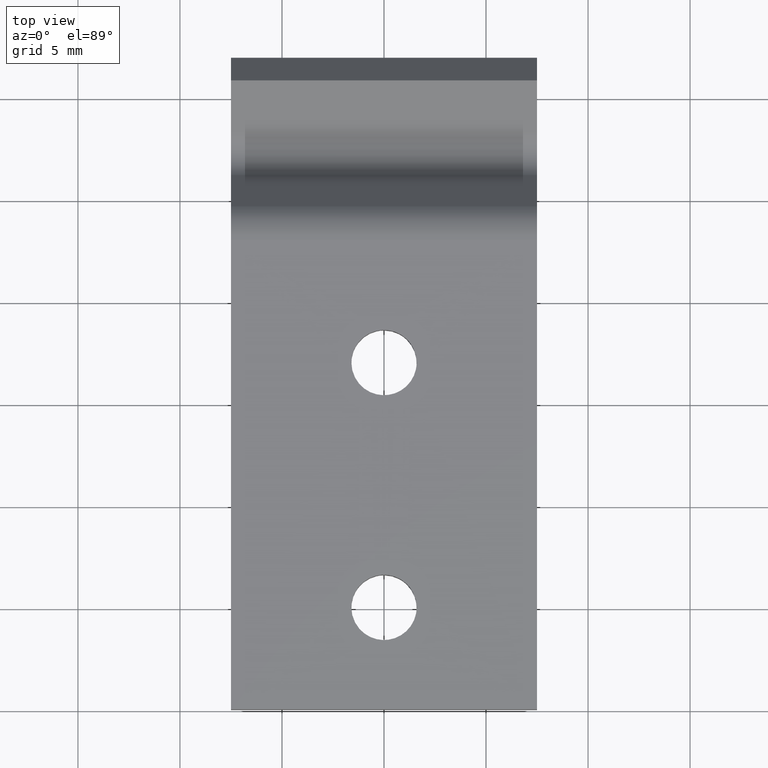
[diagram: clean part render]
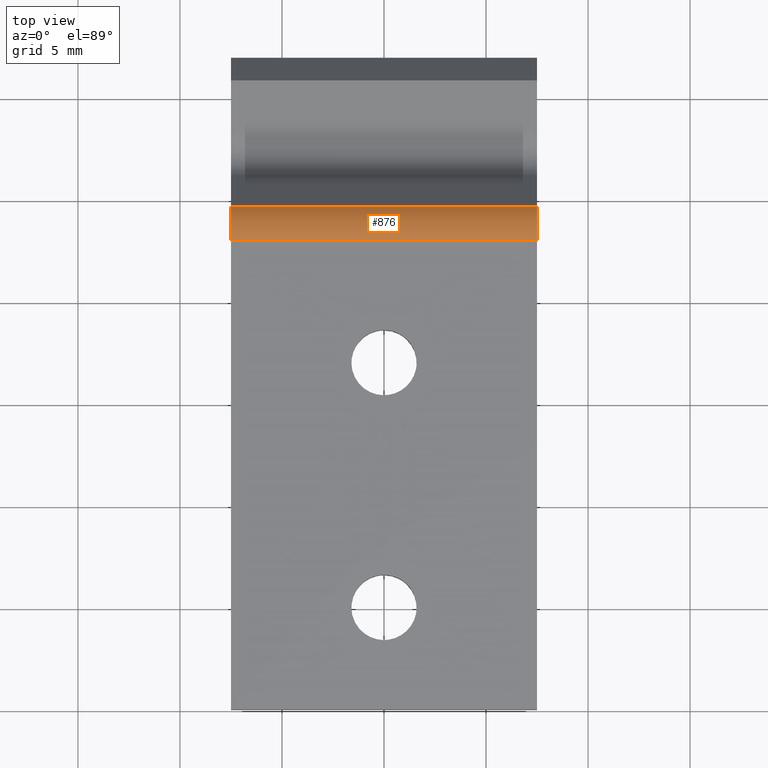
[diagram: same view with one face highlighted and labeled with its STEP entity id]
A machine part, top view. The second image highlights one B-rep face of the part: STEP entity #876.
In plain terms, the highlighted face is a freeform B-spline surface patch.
Its self-contained STEP definition (entity closure, byte-faithful):
#429=CARTESIAN_POINT('',(7.500000000000000,24.677000032489701,-0.910000049971348));
#430=VERTEX_POINT('',#429);
#431=CARTESIAN_POINT('',(7.500000000000000,23.0,1.408297E-015));
#432=VERTEX_POINT('',#431);
#433=CARTESIAN_POINT('',(7.500000000000000,24.677000032489669,-0.910000049971368));
#434=CARTESIAN_POINT('',(7.500000000000000,24.085376340791562,-0.000042243061587));
#435=CARTESIAN_POINT('',(7.500000000000000,23.0,-1.908196E-014));
#443=(BOUNDED_CURVE()B_SPLINE_CURVE(2,(#433,#434,#435),.UNSPECIFIED.,.F.,.U.)CURVE()GEOMETRIC_REPRESENTATION_ITEM()QUASI_UNIFORM_CURVE()RATIONAL_B_SPLINE_CURVE((1.0,0.878953597617270,1.0))REPRESENTATION_ITEM(''));
#444=EDGE_CURVE('',#430,#432,#443,.T.);
#542=CARTESIAN_POINT('',(-7.500000000000000,24.677000032489701,-0.910000049971348));
#543=VERTEX_POINT('',#542);
#544=CARTESIAN_POINT('',(-7.500000000000000,23.0,1.408297E-015));
#545=VERTEX_POINT('',#544);
#546=CARTESIAN_POINT('',(-7.500000000000000,24.677000032489669,-0.910000049971368));
#547=CARTESIAN_POINT('',(-7.500000000000000,24.085376340791562,-0.000042243061587));
#548=CARTESIAN_POINT('',(-7.500000000000000,23.0,-1.908196E-014));
#556=(BOUNDED_CURVE()B_SPLINE_CURVE(2,(#546,#547,#548),.UNSPECIFIED.,.F.,.U.)CURVE()GEOMETRIC_REPRESENTATION_ITEM()QUASI_UNIFORM_CURVE()RATIONAL_B_SPLINE_CURVE((1.0,0.878953597617270,1.0))REPRESENTATION_ITEM(''));
#557=EDGE_CURVE('',#543,#545,#556,.T.);
#662=CARTESIAN_POINT('',(-7.500000000000000,24.677000032489701,-0.910000049971348));
#663=CARTESIAN_POINT('',(7.500000000000000,24.677000032489701,-0.910000049971348));
#664=QUASI_UNIFORM_CURVE('',1,(#662,#663),.UNSPECIFIED.,.F.,.U.);
#665=EDGE_CURVE('',#543,#430,#664,.T.);
#834=CARTESIAN_POINT('',(-7.500000000000000,23.0,1.408297E-015));
#835=CARTESIAN_POINT('',(7.500000000000000,23.0,1.408297E-015));
#836=QUASI_UNIFORM_CURVE('',1,(#834,#835),.UNSPECIFIED.,.F.,.U.);
#837=EDGE_CURVE('',#545,#432,#836,.T.);
#856=CARTESIAN_POINT('',(-7.875000000000000,22.946491884714941,-0.000713688685106));
#857=CARTESIAN_POINT('',(7.884375000000002,22.946491884714941,-0.000713688685106));
#858=CARTESIAN_POINT('',(-7.875000000000001,24.129832838521470,0.030904706960725));
#859=CARTESIAN_POINT('',(7.884375000000001,24.129832838521470,0.030904706960725));
#860=CARTESIAN_POINT('',(-7.875000000000000,24.727057273695042,-0.991161098127459));
#861=CARTESIAN_POINT('',(7.884375000000003,24.727057273695042,-0.991161098127459));
#869=(BOUNDED_SURFACE()B_SPLINE_SURFACE(1,2,((#856,#858,#860),(#857,#859,#861)),.UNSPECIFIED.,.F.,.F.,.U.)B_SPLINE_SURFACE_WITH_KNOTS((2,2),(3,3),(0.0,15.759375000000000),(0.0,2.190138917084686),.UNSPECIFIED.)GEOMETRIC_REPRESENTATION_ITEM()RATIONAL_B_SPLINE_SURFACE(((1.0,0.856974219958842,0.991586829872685),(1.0,0.856974219958842,0.991586829872685)))REPRESENTATION_ITEM('')SURFACE());
#870=ORIENTED_EDGE('',*,*,#444,.F.);
#871=ORIENTED_EDGE('',*,*,#665,.F.);
#872=ORIENTED_EDGE('',*,*,#557,.T.);
#873=ORIENTED_EDGE('',*,*,#837,.T.);
#874=EDGE_LOOP('',(#870,#871,#872,#873));
#875=FACE_OUTER_BOUND('',#874,.T.);
#876=ADVANCED_FACE('',(#875),#869,.T.);